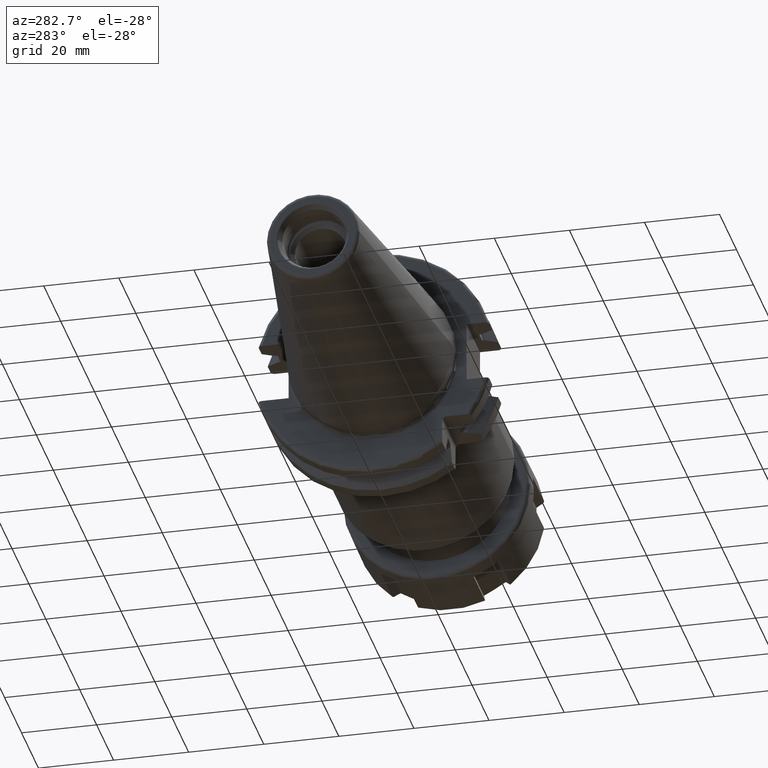
[diagram: clean part render]
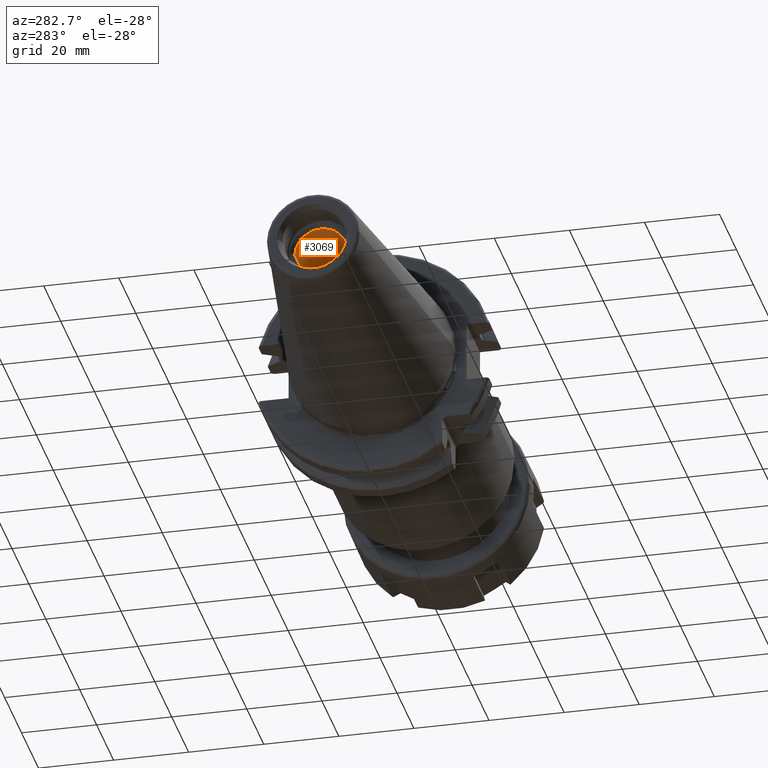
[diagram: same view with one face highlighted and labeled with its STEP entity id]
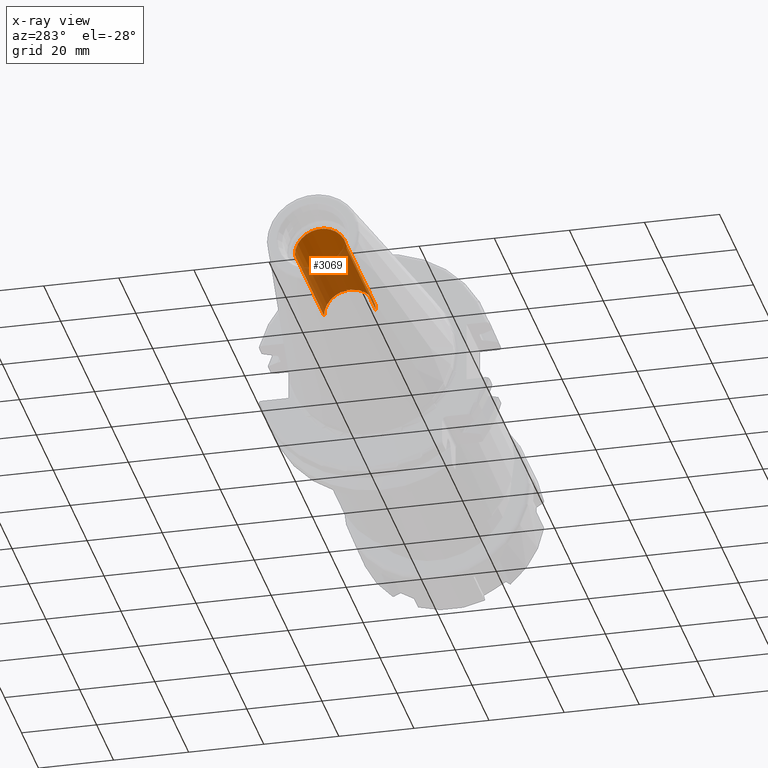
[diagram: x-ray of the same camera — body ghosted, the highlighted face saturated]
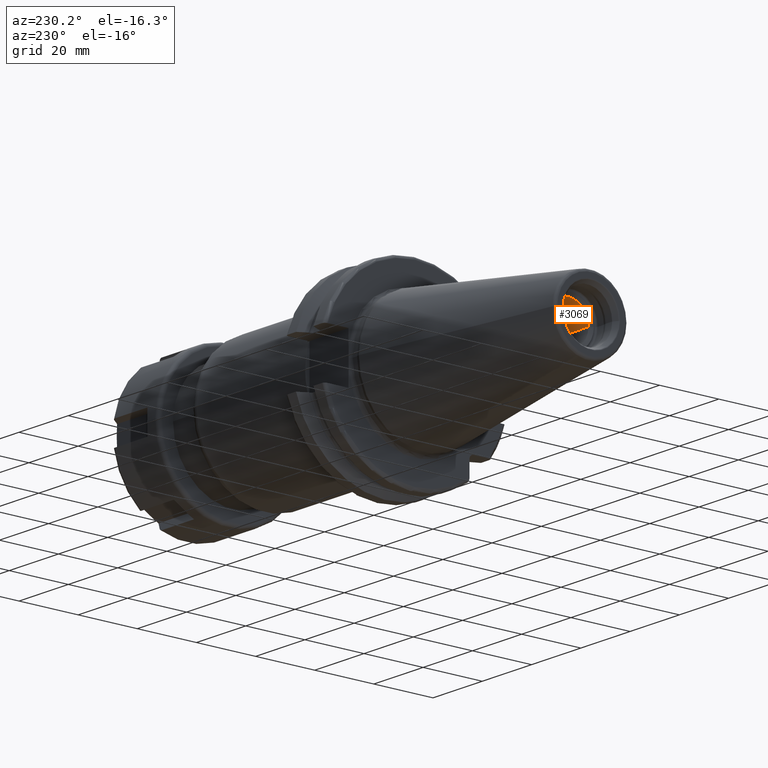
[diagram: same view with one face highlighted and labeled with its STEP entity id]
A machine part, auxiliary view. The second image highlights one B-rep face of the part: STEP entity #3069.
The next image is the same camera in x-ray: the body ghosted, the highlighted face saturated — about 55% of this face is hidden behind the body in this view.
A second angle (auxiliary view) of the same face is appended — the face is thin or edge-on in the first view.
In plain terms, the highlighted cylindrical surface (edge-blend (fillet) strip) has radius 6.92 mm, axis along (1, 0, 0).
Its self-contained STEP definition (entity closure, byte-faithful):
#1267=CARTESIAN_POINT('',(-5.88E1,0.E0,0.E0));
#1268=DIRECTION('',(1.E0,0.E0,0.E0));
#1269=DIRECTION('',(0.E0,1.E0,0.E0));
#1270=AXIS2_PLACEMENT_3D('',#1267,#1268,#1269);
#1285=DIRECTION('',(-1.E0,0.E0,0.E0));
#1286=VECTOR('',#1285,3.455E1);
#1287=CARTESIAN_POINT('',(-2.425E1,6.92E0,0.E0));
#1288=LINE('',#1287,#1286);
#1294=DIRECTION('',(-1.E0,0.E0,0.E0));
#1295=VECTOR('',#1294,3.455E1);
#1296=CARTESIAN_POINT('',(-2.425E1,-6.92E0,0.E0));
#1297=LINE('',#1296,#1295);
#1298=CARTESIAN_POINT('',(-2.425E1,0.E0,0.E0));
#1299=DIRECTION('',(1.E0,0.E0,0.E0));
#1300=DIRECTION('',(0.E0,1.E0,0.E0));
#1301=AXIS2_PLACEMENT_3D('',#1298,#1299,#1300);
#1330=CARTESIAN_POINT('',(-2.425E1,6.92E0,0.E0));
#1332=VERTEX_POINT('',#1330);
#1333=CARTESIAN_POINT('',(-5.88E1,6.92E0,0.E0));
#1334=VERTEX_POINT('',#1333);
#1353=CARTESIAN_POINT('',(-2.425E1,-6.92E0,0.E0));
#1354=VERTEX_POINT('',#1353);
#1355=CARTESIAN_POINT('',(-5.88E1,-6.92E0,0.E0));
#1356=VERTEX_POINT('',#1355);
#3057=CARTESIAN_POINT('',(-7.065789777418E1,0.E0,0.E0));
#3058=DIRECTION('',(1.E0,0.E0,0.E0));
#3059=DIRECTION('',(0.E0,-1.E0,0.E0));
#3060=AXIS2_PLACEMENT_3D('',#3057,#3058,#3059);
#3061=CYLINDRICAL_SURFACE('',#3060,6.92E0);
#3062=ORIENTED_EDGE('',*,*,#3047,.T.);
#3063=ORIENTED_EDGE('',*,*,#3024,.T.);
#3064=ORIENTED_EDGE('',*,*,#3051,.F.);
#3066=ORIENTED_EDGE('',*,*,#3065,.F.);
#3067=EDGE_LOOP('',(#3062,#3063,#3064,#3066));
#3068=FACE_OUTER_BOUND('',#3067,.F.);
#3069=ADVANCED_FACE('',(#3068),#3061,.F.);
#1271=CIRCLE('',#1270,6.92E0);
#1302=CIRCLE('',#1301,6.92E0);
#3024=EDGE_CURVE('',#1334,#1356,#1271,.T.);
#3047=EDGE_CURVE('',#1332,#1334,#1288,.T.);
#3051=EDGE_CURVE('',#1354,#1356,#1297,.T.);
#3065=EDGE_CURVE('',#1332,#1354,#1302,.T.);